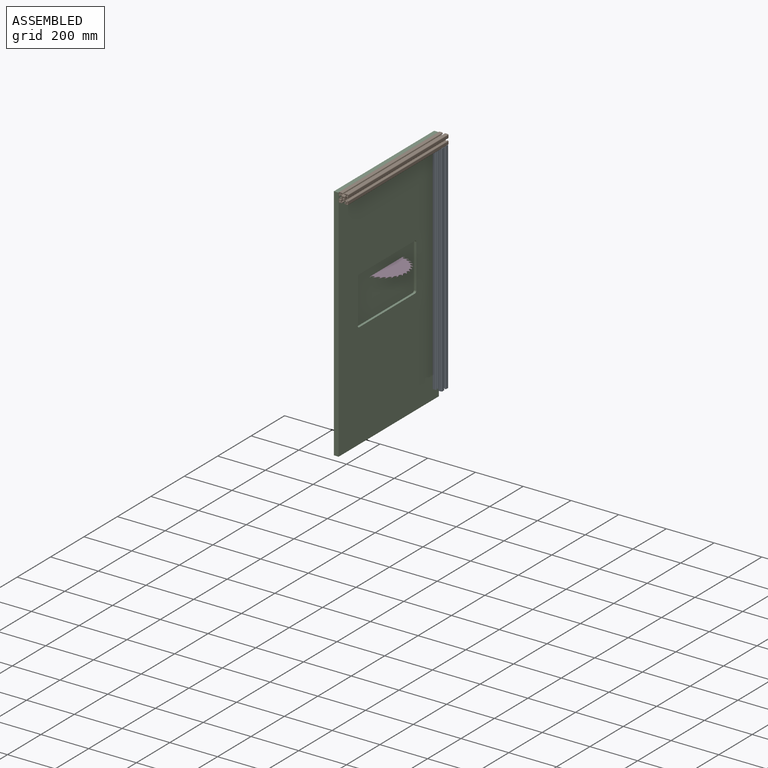
[diagram: assembled view]
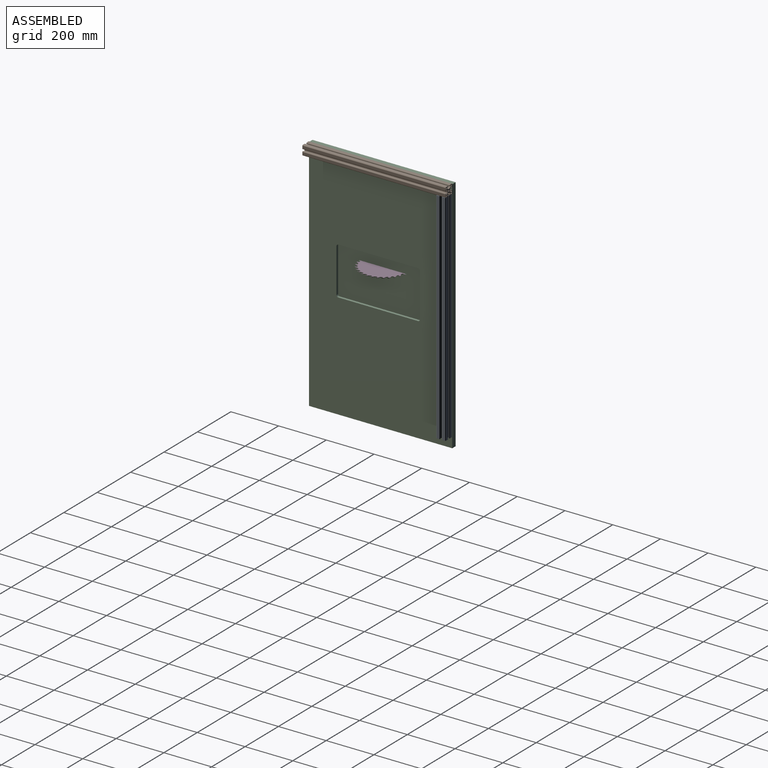
[diagram: assembled view, second angle]
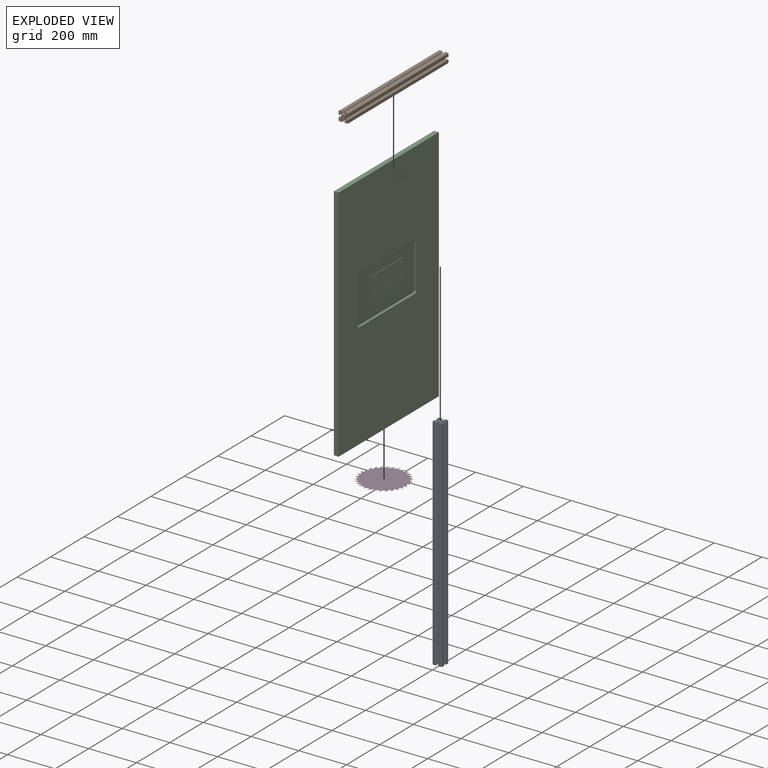
[diagram: exploded view]
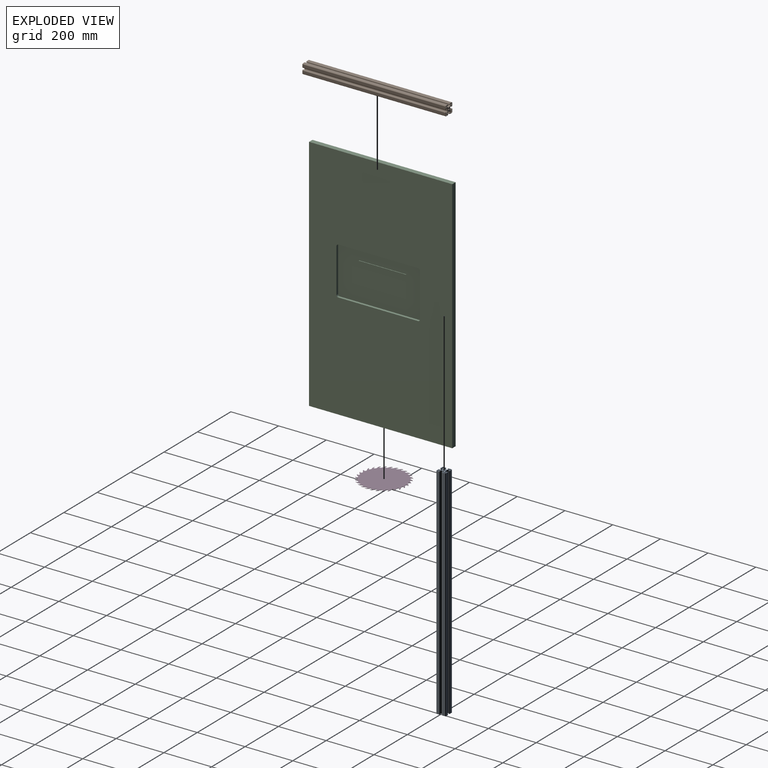
[diagram: exploded view, second angle]
ASSEMBLY  parts=4 mates=4
PART A: 111 faces, bbox 40x920x40 mm
  f0: plane 920x0.93mm, normal (0,0,-1), area 854.6mm2, adj f19,f20,f22,f30
  f1: plane 920x3.32mm, normal (-0.71,0,-0.71), area 4321mm2, adj f19,f20,f22,f23
  f2: plane 920x7.36mm, normal (-1,0,0), area 6769.2mm2, adj f19,f20,f23,f104
  f3: cylinder r=3.4mm len=920mm, axis (0,1,0), area 19653.8mm2, adj f19,f20
  f4: plane 920x7.36mm, normal (0,0,1), area 6769.2mm2, adj f19,f20,f24,f50
  f5: plane 920x3.32mm, normal (0.71,0,0.71), area 4321mm2, adj f19,f20,f24,f25
  f6: plane 920x0.93mm, normal (1,0,0), area 854.6mm2, adj f19,f20,f25,f26
  f7: plane 920x3mm, normal (-1,0,0), area 2760mm2, adj f8,f19,f20,f26
  f8: plane 920x3mm, normal (0,0,-1), area 2760mm2, adj f7,f9,f19,f20
  f9: plane 920x2mm, normal (1,0,0), area 1840mm2, adj f8,f19,f20,f27
  f10: plane 920x10mm, normal (0,0,1), area 9200mm2, adj f19,f20,f27,f28
  f11: plane 920x10mm, normal (-1,0,0), area 9200mm2, adj f19,f20,f28,f29
  f12: plane 920x2mm, normal (0,0,-1), area 1840mm2, adj f13,f19,f20,f29
  f13: plane 920x3mm, normal (1,0,0), area 2760mm2, adj f12,f14,f19,f20
  f14: plane 920x3mm, normal (0,0,1), area 2760mm2, adj f13,f19,f20,f30
  f15: plane 920x3mm, normal (0,0,-1), area 2760mm2, adj f16,f19,f20,f21
  f16: plane 920x6mm, normal (-1,0,0), area 5520mm2, adj f15,f17,f19,f20
  f17: plane 920x6mm, normal (0,0,1), area 5520mm2, adj f16,f18,f19,f20
  f18: plane 920x3mm, normal (1,0,0), area 2760mm2, adj f17,f19,f20,f21
  f19: plane 40x40mm, normal (0,-1,0), area 713.9mm2, adj f0,f1,f2,f3,f4,f5,f6,f7
  f20: plane 40x40mm, normal (0,1,0), area 713.9mm2, adj f0,f1,f2,f3,f4,f5,f6,f7
  f21: cylinder r=3mm len=920mm, axis (0,1,0), area 4335.4mm2, adj f15,f18,f19,f20
  f22: cylinder r=3mm len=920mm, axis (0,-1,0), area 2167.7mm2, adj f0,f1,f19,f20
  f23: cylinder r=3mm len=920mm, axis (0,-1,0), area 2167.7mm2, adj f1,f2,f19,f20
  f24: cylinder r=3mm len=920mm, axis (0,-1,0), area 2167.7mm2, adj f4,f5,f19,f20
  f25: cylinder r=3mm len=920mm, axis (0,-1,0), area 2167.7mm2, adj f5,f6,f19,f20
  f26: cylinder r=3mm len=920mm, axis (0,-1,0), area 4335.4mm2, adj f6,f7,f19,f20
  f27: cylinder r=3mm len=920mm, axis (0,1,0), area 4335.4mm2, adj f9,f10,f19,f20
  f28: cylinder r=3mm len=920mm, axis (0,-1,0), area 4335.4mm2, adj f10,f11,f19,f20
  f29: cylinder r=3mm len=920mm, axis (0,1,0), area 4335.4mm2, adj f11,f12,f19,f20
  f30: cylinder r=3mm len=920mm, axis (0,-1,0), area 4335.4mm2, adj f0,f14,f19,f20
  f31: plane 920x0.93mm, normal (-1,0,0), area 854.6mm2, adj f19,f20,f49,f57
  f32: plane 920x3.32mm, normal (-0.71,0,0.71), area 4321mm2, adj f19,f20,f49,f50
  f33: plane 920x7.36mm, normal (1,0,0), area 6769.2mm2, adj f19,f20,f51,f77
  f34: plane 920x3.32mm, normal (0.71,0,-0.71), area 4321mm2, adj f19,f20,f51,f52
  f35: plane 920x0.93mm, normal (0,0,-1), area 854.6mm2, adj f19,f20,f52,f53
  f36: plane 920x3mm, normal (0,0,1), area 2760mm2, adj f19,f20,f37,f53
  f37: plane 920x3mm, normal (-1,0,0), area 2760mm2, adj f19,f20,f36,f38
  f38: plane 920x2mm, normal (0,0,-1), area 1840mm2, adj f19,f20,f37,f54
  f39: plane 920x10mm, normal (1,0,0), area 9200mm2, adj f19,f20,f54,f55
  f40: plane 920x10mm, normal (0,0,1), area 9200mm2, adj f19,f20,f55,f56
  f41: plane 920x2mm, normal (-1,0,0), area 1840mm2, adj f19,f20,f42,f56
  f42: plane 920x3mm, normal (0,0,-1), area 2760mm2, adj f19,f20,f41,f43
  f43: plane 920x3mm, normal (1,0,0), area 2760mm2, adj f19,f20,f42,f57
  f44: plane 920x3mm, normal (-1,0,0), area 2760mm2, adj f19,f20,f45,f48
  f45: plane 920x6mm, normal (0,0,1), area 5520mm2, adj f19,f20,f44,f46
  f46: plane 920x6mm, normal (1,0,0), area 5520mm2, adj f19,f20,f45,f47
  f47: plane 920x3mm, normal (0,0,-1), area 2760mm2, adj f19,f20,f46,f48
  f48: cylinder r=3mm len=920mm, axis (0,1,0), area 4335.4mm2, adj f19,f20,f44,f47
  f49: cylinder r=3mm len=920mm, axis (0,-1,0), area 2167.7mm2, adj f19,f20,f31,f32
  f50: cylinder r=3mm len=920mm, axis (0,-1,0), area 2167.7mm2, adj f4,f19,f20,f32
  f51: cylinder r=3mm len=920mm, axis (0,-1,0), area 2167.7mm2, adj f19,f20,f33,f34
  f52: cylinder r=3mm len=920mm, axis (0,-1,0), area 2167.7mm2, adj f19,f20,f34,f35
  f53: cylinder r=3mm len=920mm, axis (0,-1,0), area 4335.4mm2, adj f19,f20,f35,f36
  f54: cylinder r=3mm len=920mm, axis (0,1,0), area 4335.4mm2, adj f19,f20,f38,f39
  f55: cylinder r=3mm len=920mm, axis (0,-1,0), area 4335.4mm2, adj f19,f20,f39,f40
  f56: cylinder r=3mm len=920mm, axis (0,1,0), area 4335.4mm2, adj f19,f20,f40,f41
  f57: cylinder r=3mm len=920mm, axis (0,-1,0), area 4335.4mm2, adj f19,f20,f31,f43
  f58: plane 920x0.93mm, normal (0,0,1), area 854.6mm2, adj f19,f20,f76,f84
  f59: plane 920x3.32mm, normal (0.71,0,0.71), area 4321mm2, adj f19,f20,f76,f77
  f60: plane 920x7.36mm, normal (0,0,-1), area 6769.2mm2, adj f19,f20,f78,f103
  f61: plane 920x3.32mm, normal (-0.71,0,-0.71), area 4321mm2, adj f19,f20,f78,f79
  f62: plane 920x0.93mm, normal (-1,0,0), area 854.6mm2, adj f19,f20,f79,f80
  f63: plane 920x3mm, normal (1,0,0), area 2760mm2, adj f19,f20,f64,f80
  f64: plane 920x3mm, normal (0,0,1), area 2760mm2, adj f19,f20,f63,f65
  f65: plane 920x2mm, normal (-1,0,0), area 1840mm2, adj f19,f20,f64,f81
  f66: plane 920x10mm, normal (0,0,-1), area 9200mm2, adj f19,f20,f81,f82
  f67: plane 920x10mm, normal (1,0,0), area 9200mm2, adj f19,f20,f82,f83
  f68: plane 920x2mm, normal (0,0,1), area 1840mm2, adj f19,f20,f69,f83
  f69: plane 920x3mm, normal (-1,0,0), area 2760mm2, adj f19,f20,f68,f70
  f70: plane 920x3mm, normal (0,0,-1), area 2760mm2, adj f19,f20,f69,f84
  f71: plane 920x3mm, normal (0,0,1), area 2760mm2, adj f19,f20,f72,f75
  f72: plane 920x6mm, normal (1,0,0), area 5520mm2, adj f19,f20,f71,f73
  f73: plane 920x6mm, normal (0,0,-1), area 5520mm2, adj f19,f20,f72,f74
  f74: plane 920x3mm, normal (-1,0,0), area 2760mm2, adj f19,f20,f73,f75
  f75: cylinder r=3mm len=920mm, axis (0,1,0), area 4335.4mm2, adj f19,f20,f71,f74
  f76: cylinder r=3mm len=920mm, axis (0,-1,0), area 2167.7mm2, adj f19,f20,f58,f59
  f77: cylinder r=3mm len=920mm, axis (0,-1,0), area 2167.7mm2, adj f19,f20,f33,f59
  f78: cylinder r=3mm len=920mm, axis (0,-1,0), area 2167.7mm2, adj f19,f20,f60,f61
  f79: cylinder r=3mm len=920mm, axis (0,-1,0), area 2167.7mm2, adj f19,f20,f61,f62
  f80: cylinder r=3mm len=920mm, axis (0,-1,0), area 4335.4mm2, adj f19,f20,f62,f63
  f81: cylinder r=3mm len=920mm, axis (0,1,0), area 4335.4mm2, adj f19,f20,f65,f66
  f82: cylinder r=3mm len=920mm, axis (0,-1,0), area 4335.4mm2, adj f19,f20,f66,f67
  f83: cylinder r=3mm len=920mm, axis (0,1,0), area 4335.4mm2, adj f19,f20,f67,f68
  f84: cylinder r=3mm len=920mm, axis (0,-1,0), area 4335.4mm2, adj f19,f20,f58,f70
  f85: plane 920x0.93mm, normal (1,0,0), area 854.6mm2, adj f19,f20,f102,f110
  f86: plane 920x3.32mm, normal (0.71,0,-0.71), area 4321mm2, adj f19,f20,f102,f103
  f87: plane 920x3.32mm, normal (-0.71,0,0.71), area 4321mm2, adj f19,f20,f104,f105
  f88: plane 920x0.93mm, normal (0,0,1), area 854.6mm2, adj f19,f20,f105,f106
  f89: plane 920x3mm, normal (0,0,-1), area 2760mm2, adj f19,f20,f90,f106
  f90: plane 920x3mm, normal (1,0,0), area 2760mm2, adj f19,f20,f89,f91
  f91: plane 920x2mm, normal (0,0,1), area 1840mm2, adj f19,f20,f90,f107
  f92: plane 920x10mm, normal (-1,0,0), area 9200mm2, adj f19,f20,f107,f108
  f93: plane 920x10mm, normal (0,0,-1), area 9200mm2, adj f19,f20,f108,f109
  f94: plane 920x2mm, normal (1,0,0), area 1840mm2, adj f19,f20,f95,f109
  f95: plane 920x3mm, normal (0,0,1), area 2760mm2, adj f19,f20,f94,f96
  f96: plane 920x3mm, normal (-1,0,0), area 2760mm2, adj f19,f20,f95,f110
  f97: plane 920x3mm, normal (1,0,0), area 2760mm2, adj f19,f20,f98,f101
  f98: plane 920x6mm, normal (0,0,-1), area 5520mm2, adj f19,f20,f97,f99
  f99: plane 920x6mm, normal (-1,0,0), area 5520mm2, adj f19,f20,f98,f100
  f100: plane 920x3mm, normal (0,0,1), area 2760mm2, adj f19,f20,f99,f101
  f101: cylinder r=3mm len=920mm, axis (0,1,0), area 4335.4mm2, adj f19,f20,f97,f100
  f102: cylinder r=3mm len=920mm, axis (0,-1,0), area 2167.7mm2, adj f19,f20,f85,f86
  f103: cylinder r=3mm len=920mm, axis (0,-1,0), area 2167.7mm2, adj f19,f20,f60,f86
  f104: cylinder r=3mm len=920mm, axis (0,-1,0), area 2167.7mm2, adj f2,f19,f20,f87
  f105: cylinder r=3mm len=920mm, axis (0,-1,0), area 2167.7mm2, adj f19,f20,f87,f88
  f106: cylinder r=3mm len=920mm, axis (0,-1,0), area 4335.4mm2, adj f19,f20,f88,f89
  f107: cylinder r=3mm len=920mm, axis (0,1,0), area 4335.4mm2, adj f19,f20,f91,f92
  f108: cylinder r=3mm len=920mm, axis (0,-1,0), area 4335.4mm2, adj f19,f20,f92,f93
  f109: cylinder r=3mm len=920mm, axis (0,1,0), area 4335.4mm2, adj f19,f20,f93,f94
  f110: cylinder r=3mm len=920mm, axis (0,-1,0), area 4335.4mm2, adj f19,f20,f85,f96
PART B: 111 faces, bbox 40x600x40 mm
  f0: plane 600x0.93mm, normal (0,0,-1), area 557.4mm2, adj f19,f20,f22,f30
  f1: plane 600x3.32mm, normal (-0.71,0,-0.71), area 2818mm2, adj f19,f20,f22,f23
  f2: plane 600x7.36mm, normal (-1,0,0), area 4414.7mm2, adj f19,f20,f23,f104
  f3: cylinder r=3.4mm len=600mm, axis (0,1,0), area 12817.7mm2, adj f19,f20
  f4: plane 600x7.36mm, normal (0,0,1), area 4414.7mm2, adj f19,f20,f24,f50
  f5: plane 600x3.32mm, normal (0.71,0,0.71), area 2818mm2, adj f19,f20,f24,f25
  f6: plane 600x0.93mm, normal (1,0,0), area 557.4mm2, adj f19,f20,f25,f26
  f7: plane 600x3mm, normal (-1,0,0), area 1800mm2, adj f8,f19,f20,f26
  f8: plane 600x3mm, normal (0,0,-1), area 1800mm2, adj f7,f9,f19,f20
  f9: plane 600x2mm, normal (1,0,0), area 1200mm2, adj f8,f19,f20,f27
  f10: plane 600x10mm, normal (0,0,1), area 6000mm2, adj f19,f20,f27,f28
  f11: plane 600x10mm, normal (-1,0,0), area 6000mm2, adj f19,f20,f28,f29
  f12: plane 600x2mm, normal (0,0,-1), area 1200mm2, adj f13,f19,f20,f29
  f13: plane 600x3mm, normal (1,0,0), area 1800mm2, adj f12,f14,f19,f20
  f14: plane 600x3mm, normal (0,0,1), area 1800mm2, adj f13,f19,f20,f30
  f15: plane 600x3mm, normal (0,0,-1), area 1800mm2, adj f16,f19,f20,f21
  f16: plane 600x6mm, normal (-1,0,0), area 3600mm2, adj f15,f17,f19,f20
  f17: plane 600x6mm, normal (0,0,1), area 3600mm2, adj f16,f18,f19,f20
  f18: plane 600x3mm, normal (1,0,0), area 1800mm2, adj f17,f19,f20,f21
  f19: plane 40x40mm, normal (0,-1,0), area 713.9mm2, adj f0,f1,f2,f3,f4,f5,f6,f7
  f20: plane 40x40mm, normal (0,1,0), area 713.9mm2, adj f0,f1,f2,f3,f4,f5,f6,f7
  f21: cylinder r=3mm len=600mm, axis (0,1,0), area 2827.4mm2, adj f15,f18,f19,f20
  f22: cylinder r=3mm len=600mm, axis (0,-1,0), area 1413.7mm2, adj f0,f1,f19,f20
  f23: cylinder r=3mm len=600mm, axis (0,-1,0), area 1413.7mm2, adj f1,f2,f19,f20
  f24: cylinder r=3mm len=600mm, axis (0,-1,0), area 1413.7mm2, adj f4,f5,f19,f20
  f25: cylinder r=3mm len=600mm, axis (0,-1,0), area 1413.7mm2, adj f5,f6,f19,f20
  f26: cylinder r=3mm len=600mm, axis (0,-1,0), area 2827.4mm2, adj f6,f7,f19,f20
  f27: cylinder r=3mm len=600mm, axis (0,1,0), area 2827.4mm2, adj f9,f10,f19,f20
  f28: cylinder r=3mm len=600mm, axis (0,-1,0), area 2827.4mm2, adj f10,f11,f19,f20
  f29: cylinder r=3mm len=600mm, axis (0,1,0), area 2827.4mm2, adj f11,f12,f19,f20
  f30: cylinder r=3mm len=600mm, axis (0,-1,0), area 2827.4mm2, adj f0,f14,f19,f20
  f31: plane 600x0.93mm, normal (-1,0,0), area 557.4mm2, adj f19,f20,f49,f57
  f32: plane 600x3.32mm, normal (-0.71,0,0.71), area 2818mm2, adj f19,f20,f49,f50
  f33: plane 600x7.36mm, normal (1,0,0), area 4414.7mm2, adj f19,f20,f51,f77
  f34: plane 600x3.32mm, normal (0.71,0,-0.71), area 2818mm2, adj f19,f20,f51,f52
  f35: plane 600x0.93mm, normal (0,0,-1), area 557.4mm2, adj f19,f20,f52,f53
  f36: plane 600x3mm, normal (0,0,1), area 1800mm2, adj f19,f20,f37,f53
  f37: plane 600x3mm, normal (-1,0,0), area 1800mm2, adj f19,f20,f36,f38
  f38: plane 600x2mm, normal (0,0,-1), area 1200mm2, adj f19,f20,f37,f54
  f39: plane 600x10mm, normal (1,0,0), area 6000mm2, adj f19,f20,f54,f55
  f40: plane 600x10mm, normal (0,0,1), area 6000mm2, adj f19,f20,f55,f56
  f41: plane 600x2mm, normal (-1,0,0), area 1200mm2, adj f19,f20,f42,f56
  f42: plane 600x3mm, normal (0,0,-1), area 1800mm2, adj f19,f20,f41,f43
  f43: plane 600x3mm, normal (1,0,0), area 1800mm2, adj f19,f20,f42,f57
  f44: plane 600x3mm, normal (-1,0,0), area 1800mm2, adj f19,f20,f45,f48
  f45: plane 600x6mm, normal (0,0,1), area 3600mm2, adj f19,f20,f44,f46
  f46: plane 600x6mm, normal (1,0,0), area 3600mm2, adj f19,f20,f45,f47
  f47: plane 600x3mm, normal (0,0,-1), area 1800mm2, adj f19,f20,f46,f48
  f48: cylinder r=3mm len=600mm, axis (0,1,0), area 2827.4mm2, adj f19,f20,f44,f47
  f49: cylinder r=3mm len=600mm, axis (0,-1,0), area 1413.7mm2, adj f19,f20,f31,f32
  f50: cylinder r=3mm len=600mm, axis (0,-1,0), area 1413.7mm2, adj f4,f19,f20,f32
  f51: cylinder r=3mm len=600mm, axis (0,-1,0), area 1413.7mm2, adj f19,f20,f33,f34
  f52: cylinder r=3mm len=600mm, axis (0,-1,0), area 1413.7mm2, adj f19,f20,f34,f35
  f53: cylinder r=3mm len=600mm, axis (0,-1,0), area 2827.4mm2, adj f19,f20,f35,f36
  f54: cylinder r=3mm len=600mm, axis (0,1,0), area 2827.4mm2, adj f19,f20,f38,f39
  f55: cylinder r=3mm len=600mm, axis (0,-1,0), area 2827.4mm2, adj f19,f20,f39,f40
  f56: cylinder r=3mm len=600mm, axis (0,1,0), area 2827.4mm2, adj f19,f20,f40,f41
  f57: cylinder r=3mm len=600mm, axis (0,-1,0), area 2827.4mm2, adj f19,f20,f31,f43
  f58: plane 600x0.93mm, normal (0,0,1), area 557.4mm2, adj f19,f20,f76,f84
  f59: plane 600x3.32mm, normal (0.71,0,0.71), area 2818mm2, adj f19,f20,f76,f77
  f60: plane 600x7.36mm, normal (0,0,-1), area 4414.7mm2, adj f19,f20,f78,f103
  f61: plane 600x3.32mm, normal (-0.71,0,-0.71), area 2818mm2, adj f19,f20,f78,f79
  f62: plane 600x0.93mm, normal (-1,0,0), area 557.4mm2, adj f19,f20,f79,f80
  f63: plane 600x3mm, normal (1,0,0), area 1800mm2, adj f19,f20,f64,f80
  f64: plane 600x3mm, normal (0,0,1), area 1800mm2, adj f19,f20,f63,f65
  f65: plane 600x2mm, normal (-1,0,0), area 1200mm2, adj f19,f20,f64,f81
  f66: plane 600x10mm, normal (0,0,-1), area 6000mm2, adj f19,f20,f81,f82
  f67: plane 600x10mm, normal (1,0,0), area 6000mm2, adj f19,f20,f82,f83
  f68: plane 600x2mm, normal (0,0,1), area 1200mm2, adj f19,f20,f69,f83
  f69: plane 600x3mm, normal (-1,0,0), area 1800mm2, adj f19,f20,f68,f70
  f70: plane 600x3mm, normal (0,0,-1), area 1800mm2, adj f19,f20,f69,f84
  f71: plane 600x3mm, normal (0,0,1), area 1800mm2, adj f19,f20,f72,f75
  f72: plane 600x6mm, normal (1,0,0), area 3600mm2, adj f19,f20,f71,f73
  f73: plane 600x6mm, normal (0,0,-1), area 3600mm2, adj f19,f20,f72,f74
  f74: plane 600x3mm, normal (-1,0,0), area 1800mm2, adj f19,f20,f73,f75
  f75: cylinder r=3mm len=600mm, axis (0,1,0), area 2827.4mm2, adj f19,f20,f71,f74
  f76: cylinder r=3mm len=600mm, axis (0,-1,0), area 1413.7mm2, adj f19,f20,f58,f59
  f77: cylinder r=3mm len=600mm, axis (0,-1,0), area 1413.7mm2, adj f19,f20,f33,f59
  f78: cylinder r=3mm len=600mm, axis (0,-1,0), area 1413.7mm2, adj f19,f20,f60,f61
  f79: cylinder r=3mm len=600mm, axis (0,-1,0), area 1413.7mm2, adj f19,f20,f61,f62
  f80: cylinder r=3mm len=600mm, axis (0,-1,0), area 2827.4mm2, adj f19,f20,f62,f63
  f81: cylinder r=3mm len=600mm, axis (0,1,0), area 2827.4mm2, adj f19,f20,f65,f66
  f82: cylinder r=3mm len=600mm, axis (0,-1,0), area 2827.4mm2, adj f19,f20,f66,f67
  f83: cylinder r=3mm len=600mm, axis (0,1,0), area 2827.4mm2, adj f19,f20,f67,f68
  f84: cylinder r=3mm len=600mm, axis (0,-1,0), area 2827.4mm2, adj f19,f20,f58,f70
  f85: plane 600x0.93mm, normal (1,0,0), area 557.4mm2, adj f19,f20,f102,f110
  f86: plane 600x3.32mm, normal (0.71,0,-0.71), area 2818mm2, adj f19,f20,f102,f103
  f87: plane 600x3.32mm, normal (-0.71,0,0.71), area 2818mm2, adj f19,f20,f104,f105
  f88: plane 600x0.93mm, normal (0,0,1), area 557.4mm2, adj f19,f20,f105,f106
  f89: plane 600x3mm, normal (0,0,-1), area 1800mm2, adj f19,f20,f90,f106
  f90: plane 600x3mm, normal (1,0,0), area 1800mm2, adj f19,f20,f89,f91
  f91: plane 600x2mm, normal (0,0,1), area 1200mm2, adj f19,f20,f90,f107
  f92: plane 600x10mm, normal (-1,0,0), area 6000mm2, adj f19,f20,f107,f108
  f93: plane 600x10mm, normal (0,0,-1), area 6000mm2, adj f19,f20,f108,f109
  f94: plane 600x2mm, normal (1,0,0), area 1200mm2, adj f19,f20,f95,f109
  f95: plane 600x3mm, normal (0,0,1), area 1800mm2, adj f19,f20,f94,f96
  f96: plane 600x3mm, normal (-1,0,0), area 1800mm2, adj f19,f20,f95,f110
  f97: plane 600x3mm, normal (1,0,0), area 1800mm2, adj f19,f20,f98,f101
  f98: plane 600x6mm, normal (0,0,-1), area 3600mm2, adj f19,f20,f97,f99
  f99: plane 600x6mm, normal (-1,0,0), area 3600mm2, adj f19,f20,f98,f100
  f100: plane 600x3mm, normal (0,0,1), area 1800mm2, adj f19,f20,f99,f101
  f101: cylinder r=3mm len=600mm, axis (0,1,0), area 2827.4mm2, adj f19,f20,f97,f100
  f102: cylinder r=3mm len=600mm, axis (0,-1,0), area 1413.7mm2, adj f19,f20,f85,f86
  f103: cylinder r=3mm len=600mm, axis (0,-1,0), area 1413.7mm2, adj f19,f20,f60,f86
  f104: cylinder r=3mm len=600mm, axis (0,-1,0), area 1413.7mm2, adj f2,f19,f20,f87
  f105: cylinder r=3mm len=600mm, axis (0,-1,0), area 1413.7mm2, adj f19,f20,f87,f88
  f106: cylinder r=3mm len=600mm, axis (0,-1,0), area 2827.4mm2, adj f19,f20,f88,f89
  f107: cylinder r=3mm len=600mm, axis (0,1,0), area 2827.4mm2, adj f19,f20,f91,f92
  f108: cylinder r=3mm len=600mm, axis (0,-1,0), area 2827.4mm2, adj f19,f20,f92,f93
  f109: cylinder r=3mm len=600mm, axis (0,1,0), area 2827.4mm2, adj f19,f20,f93,f94
  f110: cylinder r=3mm len=600mm, axis (0,-1,0), area 2827.4mm2, adj f19,f20,f85,f96
PART C: 19 faces, bbox 1000x20x600 mm
  f0: plane 200x10mm, normal (1,0,0), area 2000mm2, adj f1,f3,f8,f10
  f1: plane 10x1.5mm, normal (0,0,1), area 15mm2, adj f0,f2,f8,f10
  f2: plane 200x10mm, normal (-1,0,0), area 2000mm2, adj f1,f3,f8,f10
  f3: plane 10x1.5mm, normal (0,0,-1), area 15mm2, adj f0,f2,f8,f10
  f4: plane 1000x20mm, normal (0,0,1), area 20000mm2, adj f5,f7,f8,f9
  f5: plane 600x20mm, normal (-1,0,0), area 12000mm2, adj f4,f6,f8,f9
  f6: plane 1000x20mm, normal (0,0,-1), area 20000mm2, adj f5,f7,f8,f9
  f7: plane 600x20mm, normal (1,0,0), area 12000mm2, adj f4,f6,f8,f9
  f8: plane 1000x600mm, normal (0,-1,0), area 599700mm2, adj f0,f1,f2,f3,f4,f5,f6,f7
  f9: plane 1000x600mm, normal (0,1,0), area 530054.9mm2, adj f4,f5,f6,f7,f11,f12,f13,f14
  f10: plane 350x200mm, normal (0,1,0), area 69645.1mm2, adj f0,f1,f2,f3,f11,f12,f13,f14
  f11: plane 334x10mm, normal (-1,0,0), area 3340mm2, adj f9,f10,f15,f18
  f12: plane 184x10mm, normal (0,0,1), area 1840mm2, adj f9,f10,f15,f16
  f13: plane 334x10mm, normal (1,0,0), area 3340mm2, adj f9,f10,f16,f17
  f14: plane 184x10mm, normal (0,0,-1), area 1840mm2, adj f9,f10,f17,f18
  f15: cylinder r=8mm len=10mm, axis (0,-1,0), area 125.7mm2, adj f9,f10,f11,f12
  f16: cylinder r=8mm len=10mm, axis (0,1,0), area 125.7mm2, adj f9,f10,f12,f13
  f17: cylinder r=8mm len=10mm, axis (0,-1,0), area 125.7mm2, adj f9,f10,f13,f14
  f18: cylinder r=8mm len=10mm, axis (0,1,0), area 125.7mm2, adj f9,f10,f11,f14
PART D: 122 faces, bbox 199x1.2x200 mm
  f0: cylinder r=10.93mm len=6.64mm, axis (0,1,0), area 11.1mm2, adj f1,f119,f120,f121
  f1: cylinder r=4.88mm len=9.52mm, axis (0,1,0), area 18.4mm2, adj f0,f2,f120,f121
  f2: plane 1.2x0.23mm, normal (0.31,0,-0.95), area 0.3mm2, adj f1,f3,f120,f121
  f3: cylinder r=13.21mm len=9.9mm, axis (0,1,0), area 16.7mm2, adj f2,f4,f120,f121
  f4: cylinder r=10.93mm len=7.26mm, axis (0,1,0), area 11.1mm2, adj f3,f5,f120,f121
  f5: cylinder r=4.88mm len=9.1mm, axis (0,1,0), area 18.4mm2, adj f4,f6,f120,f121
  f6: plane 1.2x0.21mm, normal (0.5,0,-0.87), area 0.3mm2, adj f5,f7,f120,f121
  f7: cylinder r=13.21mm len=11.53mm, axis (0,1,0), area 16.7mm2, adj f6,f8,f120,f121
  f8: cylinder r=10.93mm len=8.19mm, axis (0,1,0), area 11.1mm2, adj f7,f9,f120,f121
  f9: cylinder r=4.88mm len=8.5mm, axis (0,1,0), area 18.4mm2, adj f8,f10,f120,f121
  f10: plane 1.2x0.18mm, normal (0.67,0,-0.74), area 0.3mm2, adj f9,f11,f120,f121
  f11: cylinder r=13.21mm len=12.65mm, axis (0,1,0), area 16.7mm2, adj f10,f12,f120,f121
  f12: cylinder r=10.93mm len=8.77mm, axis (0,1,0), area 11.1mm2, adj f11,f13,f120,f121
  f13: cylinder r=4.88mm len=8.83mm, axis (0,1,0), area 18.4mm2, adj f12,f14,f120,f121
  f14: plane 1.2x0.2mm, normal (0.81,0,-0.59), area 0.3mm2, adj f13,f15,f120,f121
  f15: cylinder r=13.21mm len=13.22mm, axis (0,1,0), area 16.7mm2, adj f14,f16,f120,f121
  f16: cylinder r=10.93mm len=8.96mm, axis (0,1,0), area 11.1mm2, adj f15,f17,f120,f121
  f17: cylinder r=4.88mm len=9.34mm, axis (0,1,0), area 18.4mm2, adj f16,f18,f120,f121
  f18: plane 1.2x0.22mm, normal (0.91,0,-0.41), area 0.3mm2, adj f17,f19,f120,f121
  f19: cylinder r=13.21mm len=13.21mm, axis (0,1,0), area 16.7mm2, adj f18,f20,f120,f121
  f20: cylinder r=10.93mm len=8.75mm, axis (0,1,0), area 11.1mm2, adj f19,f21,f120,f121
  f21: cylinder r=4.88mm len=9.65mm, axis (0,1,0), area 18.4mm2, adj f20,f22,f120,f121
  f22: plane 1.2x0.24mm, normal (0.98,0,-0.21), area 0.3mm2, adj f21,f23,f120,f121
  f23: cylinder r=13.21mm len=12.62mm, axis (0,1,0), area 16.7mm2, adj f22,f24,f120,f121
  f24: cylinder r=10.93mm len=8.17mm, axis (0,1,0), area 11.1mm2, adj f23,f25,f120,f121
  f25: cylinder r=4.88mm len=9.76mm, axis (0,1,0), area 18.4mm2, adj f24,f26,f120,f121
  f26: plane 1.2x0.24mm, normal (1,0,0), area 0.3mm2, adj f25,f27,f120,f121
  f27: cylinder r=13.21mm len=11.48mm, axis (0,1,0), area 16.7mm2, adj f26,f28,f120,f121
  f28: cylinder r=10.93mm len=7.23mm, axis (0,1,0), area 11.1mm2, adj f27,f29,f120,f121
  f29: cylinder r=4.88mm len=9.65mm, axis (0,1,0), area 18.4mm2, adj f28,f30,f120,f121
  f30: plane 1.2x0.24mm, normal (0.98,0,0.21), area 0.3mm2, adj f29,f31,f120,f121
  f31: cylinder r=13.21mm len=9.84mm, axis (0,1,0), area 16.7mm2, adj f30,f32,f120,f121
  f32: cylinder r=10.93mm len=6.67mm, axis (0,1,0), area 11.1mm2, adj f31,f33,f120,f121
  f33: cylinder r=4.88mm len=9.34mm, axis (0,1,0), area 18.4mm2, adj f32,f34,f120,f121
  f34: plane 1.2x0.22mm, normal (0.91,0,0.41), area 0.3mm2, adj f33,f35,f120,f121
  f35: cylinder r=13.21mm len=10.77mm, axis (0,1,0), area 16.7mm2, adj f34,f36,f120,f121
  f36: cylinder r=10.93mm len=7.77mm, axis (0,1,0), area 11.1mm2, adj f35,f37,f120,f121
  f37: cylinder r=4.88mm len=8.83mm, axis (0,1,0), area 18.4mm2, adj f36,f38,f120,f121
  f38: plane 1.2x0.2mm, normal (0.81,0,0.59), area 0.3mm2, adj f37,f39,f120,f121
  f39: cylinder r=13.21mm len=12.15mm, axis (0,1,0), area 16.7mm2, adj f38,f40,f120,f121
  f40: cylinder r=10.93mm len=8.53mm, axis (0,1,0), area 11.1mm2, adj f39,f41,f120,f121
  f41: cylinder r=4.88mm len=8.5mm, axis (0,1,0), area 18.4mm2, adj f40,f42,f120,f121
  f42: plane 1.2x0.18mm, normal (0.67,0,0.74), area 0.3mm2, adj f41,f43,f120,f121
  f43: cylinder r=13.21mm len=13mm, axis (0,1,0), area 16.7mm2, adj f42,f44,f120,f121
  f44: cylinder r=10.93mm len=8.91mm, axis (0,1,0), area 11.1mm2, adj f43,f45,f120,f121
  f45: cylinder r=4.88mm len=9.1mm, axis (0,1,0), area 18.4mm2, adj f44,f46,f120,f121
  f46: plane 1.2x0.21mm, normal (0.5,0,0.87), area 0.3mm2, adj f45,f47,f120,f121
  f47: cylinder r=13.21mm len=13.29mm, axis (0,1,0), area 16.7mm2, adj f46,f48,f120,f121
  f48: cylinder r=10.93mm len=8.9mm, axis (0,1,0), area 11.1mm2, adj f47,f49,f120,f121
  f49: cylinder r=4.88mm len=9.52mm, axis (0,1,0), area 18.4mm2, adj f48,f50,f120,f121
  f50: plane 1.2x0.23mm, normal (0.31,0,0.95), area 0.3mm2, adj f49,f51,f120,f121
  f51: cylinder r=13.21mm len=12.99mm, axis (0,1,0), area 16.7mm2, adj f50,f52,f120,f121
  f52: cylinder r=10.93mm len=8.51mm, axis (0,1,0), area 11.1mm2, adj f51,f53,f120,f121
  f53: cylinder r=4.88mm len=9.73mm, axis (0,1,0), area 18.4mm2, adj f52,f54,f120,f121
  f54: plane 1.2x0.24mm, normal (0.1,0,0.99), area 0.3mm2, adj f53,f55,f120,f121
  f55: cylinder r=13.21mm len=12.12mm, axis (0,1,0), area 16.7mm2, adj f54,f56,f120,f121
  f56: cylinder r=10.93mm len=7.74mm, axis (0,1,0), area 11.1mm2, adj f55,f57,f120,f121
  f57: cylinder r=4.88mm len=9.73mm, axis (0,1,0), area 18.4mm2, adj f56,f58,f120,f121
  f58: plane 1.2x0.24mm, normal (-0.1,0,0.99), area 0.3mm2, adj f57,f59,f120,f121
  f59: cylinder r=13.21mm len=10.72mm, axis (0,1,0), area 16.7mm2, adj f58,f60,f120,f121
  f60: cylinder r=10.93mm len=6.64mm, axis (0,1,0), area 11.1mm2, adj f59,f61,f120,f121
  f61: cylinder r=4.88mm len=9.52mm, axis (0,1,0), area 18.4mm2, adj f60,f62,f120,f121
  f62: plane 1.2x0.23mm, normal (-0.31,0,0.95), area 0.3mm2, adj f61,f63,f120,f121
  f63: cylinder r=13.21mm len=9.9mm, axis (0,1,0), area 16.7mm2, adj f62,f64,f120,f121
  f64: cylinder r=10.93mm len=7.26mm, axis (0,1,0), area 11.1mm2, adj f63,f65,f120,f121
  f65: cylinder r=4.88mm len=9.1mm, axis (0,1,0), area 18.4mm2, adj f64,f66,f120,f121
  f66: plane 1.2x0.21mm, normal (-0.5,0,0.87), area 0.3mm2, adj f65,f67,f120,f121
  f67: cylinder r=13.21mm len=11.53mm, axis (0,1,0), area 16.7mm2, adj f66,f68,f120,f121
  f68: cylinder r=10.93mm len=8.19mm, axis (0,1,0), area 11.1mm2, adj f67,f69,f120,f121
  f69: cylinder r=4.88mm len=8.5mm, axis (0,1,0), area 18.4mm2, adj f68,f70,f120,f121
  f70: plane 1.2x0.18mm, normal (-0.67,0,0.74), area 0.3mm2, adj f69,f71,f120,f121
  f71: cylinder r=13.21mm len=12.65mm, axis (0,1,0), area 16.7mm2, adj f70,f72,f120,f121
  f72: cylinder r=10.93mm len=8.77mm, axis (0,1,0), area 11.1mm2, adj f71,f73,f120,f121
  f73: cylinder r=4.88mm len=8.83mm, axis (0,1,0), area 18.4mm2, adj f72,f74,f120,f121
  f74: plane 1.2x0.2mm, normal (-0.81,0,0.59), area 0.3mm2, adj f73,f75,f120,f121
  f75: cylinder r=13.21mm len=13.22mm, axis (0,1,0), area 16.7mm2, adj f74,f76,f120,f121
  f76: cylinder r=10.93mm len=8.96mm, axis (0,1,0), area 11.1mm2, adj f75,f77,f120,f121
  f77: cylinder r=4.88mm len=9.34mm, axis (0,1,0), area 18.4mm2, adj f76,f78,f120,f121
  f78: plane 1.2x0.22mm, normal (-0.91,0,0.41), area 0.3mm2, adj f77,f79,f120,f121
  f79: cylinder r=13.21mm len=13.21mm, axis (0,1,0), area 16.7mm2, adj f78,f80,f120,f121
  f80: cylinder r=10.93mm len=8.75mm, axis (0,1,0), area 11.1mm2, adj f79,f81,f120,f121
  f81: cylinder r=4.88mm len=9.65mm, axis (0,1,0), area 18.4mm2, adj f80,f82,f120,f121
  f82: plane 1.2x0.24mm, normal (-0.98,0,0.21), area 0.3mm2, adj f81,f83,f120,f121
  f83: cylinder r=13.21mm len=12.62mm, axis (0,1,0), area 16.7mm2, adj f82,f84,f120,f121
  f84: cylinder r=10.93mm len=8.17mm, axis (0,1,0), area 11.1mm2, adj f83,f85,f120,f121
  f85: cylinder r=4.88mm len=9.76mm, axis (0,1,0), area 18.4mm2, adj f84,f86,f120,f121
  f86: plane 1.2x0.24mm, normal (-1,0,0), area 0.3mm2, adj f85,f87,f120,f121
  f87: cylinder r=13.21mm len=11.48mm, axis (0,1,0), area 16.7mm2, adj f86,f88,f120,f121
  f88: cylinder r=10.93mm len=7.23mm, axis (0,1,0), area 11.1mm2, adj f87,f89,f120,f121
  f89: cylinder r=4.88mm len=9.65mm, axis (0,1,0), area 18.4mm2, adj f88,f90,f120,f121
  f90: plane 1.2x0.24mm, normal (-0.98,0,-0.21), area 0.3mm2, adj f89,f91,f120,f121
  f91: cylinder r=13.21mm len=9.84mm, axis (0,1,0), area 16.7mm2, adj f90,f92,f120,f121
  f92: cylinder r=10.93mm len=6.67mm, axis (0,1,0), area 11.1mm2, adj f91,f93,f120,f121
  f93: cylinder r=4.88mm len=9.34mm, axis (0,1,0), area 18.4mm2, adj f92,f94,f120,f121
  f94: plane 1.2x0.22mm, normal (-0.91,0,-0.41), area 0.3mm2, adj f93,f95,f120,f121
  f95: cylinder r=13.21mm len=10.77mm, axis (0,1,0), area 16.7mm2, adj f94,f96,f120,f121
  f96: cylinder r=10.93mm len=7.77mm, axis (0,1,0), area 11.1mm2, adj f95,f97,f120,f121
  f97: cylinder r=4.88mm len=8.83mm, axis (0,1,0), area 18.4mm2, adj f96,f98,f120,f121
  f98: plane 1.2x0.2mm, normal (-0.81,0,-0.59), area 0.3mm2, adj f97,f99,f120,f121
  f99: cylinder r=13.21mm len=12.15mm, axis (0,1,0), area 16.7mm2, adj f98,f100,f120,f121
  f100: cylinder r=10.93mm len=8.53mm, axis (0,1,0), area 11.1mm2, adj f99,f101,f120,f121
  f101: cylinder r=4.88mm len=8.5mm, axis (0,1,0), area 18.4mm2, adj f100,f102,f120,f121
  f102: plane 1.2x0.18mm, normal (-0.67,0,-0.74), area 0.3mm2, adj f101,f103,f120,f121
  f103: cylinder r=13.21mm len=13mm, axis (0,1,0), area 16.7mm2, adj f102,f104,f120,f121
  f104: cylinder r=10.93mm len=8.91mm, axis (0,1,0), area 11.1mm2, adj f103,f105,f120,f121
  f105: cylinder r=4.88mm len=9.1mm, axis (0,1,0), area 18.4mm2, adj f104,f106,f120,f121
  f106: plane 1.2x0.21mm, normal (-0.5,0,-0.87), area 0.3mm2, adj f105,f107,f120,f121
  f107: cylinder r=13.21mm len=13.29mm, axis (0,1,0), area 16.7mm2, adj f106,f108,f120,f121
  f108: cylinder r=10.93mm len=8.9mm, axis (0,1,0), area 11.1mm2, adj f107,f109,f120,f121
  f109: cylinder r=4.88mm len=9.52mm, axis (0,1,0), area 18.4mm2, adj f108,f110,f120,f121
  f110: plane 1.2x0.23mm, normal (-0.31,0,-0.95), area 0.3mm2, adj f109,f111,f120,f121
  f111: cylinder r=13.21mm len=12.99mm, axis (0,1,0), area 16.7mm2, adj f110,f112,f120,f121
  f112: cylinder r=10.93mm len=8.51mm, axis (0,1,0), area 11.1mm2, adj f111,f113,f120,f121
  f113: cylinder r=4.88mm len=9.73mm, axis (0,1,0), area 18.4mm2, adj f112,f114,f120,f121
  f114: plane 1.2x0.24mm, normal (-0.1,0,-0.99), area 0.3mm2, adj f113,f115,f120,f121
  f115: cylinder r=13.21mm len=12.12mm, axis (0,1,0), area 16.7mm2, adj f114,f116,f120,f121
  f116: cylinder r=10.93mm len=7.74mm, axis (0,1,0), area 11.1mm2, adj f115,f117,f120,f121
  f117: cylinder r=4.88mm len=9.73mm, axis (0,1,0), area 18.4mm2, adj f116,f118,f120,f121
  f118: plane 1.2x0.24mm, normal (0.1,0,-0.99), area 0.3mm2, adj f117,f119,f120,f121
  f119: cylinder r=13.21mm len=10.72mm, axis (0,1,0), area 16.7mm2, adj f0,f118,f120,f121
  f120: plane 200x199.05mm, normal (0,-1,0), area 27442.4mm2, adj f0,f1,f2,f3,f4,f5,f6,f7
  f121: plane 200x199.05mm, normal (0,1,0), area 27442.4mm2, adj f0,f1,f2,f3,f4,f5,f6,f7
PLACE A rot(axis=(1,0,0),90deg) t=(-184.35,225.32,57.63)mm
PLACE B t=(-184.35,245.32,77.63)mm
PLACE C rot(axis=(-0.58,-0.58,-0.58),120deg) t=(-204.35,-354.68,-905.37)mm
PLACE D rot(axis=(-1,0,0),90deg) t=(-224.35,-54.68,-303.87)mm
MATE planar A.f3 <-> B.f66  axis (0,0,1) through (-184.35,225.32,57.63)mm
MATE revolute D.f121 <-> C.f2  axis (0,0,-1) through (-224.35,-54.68,-303.87)mm
MATE planar A.f93 <-> B.f20  axis (0,1,0) through (-196.35,245.32,57.63)mm
MATE fastened C.f9 <-> B.f11  axis (1,0,0) through (-204.35,245.32,94.63)mm
